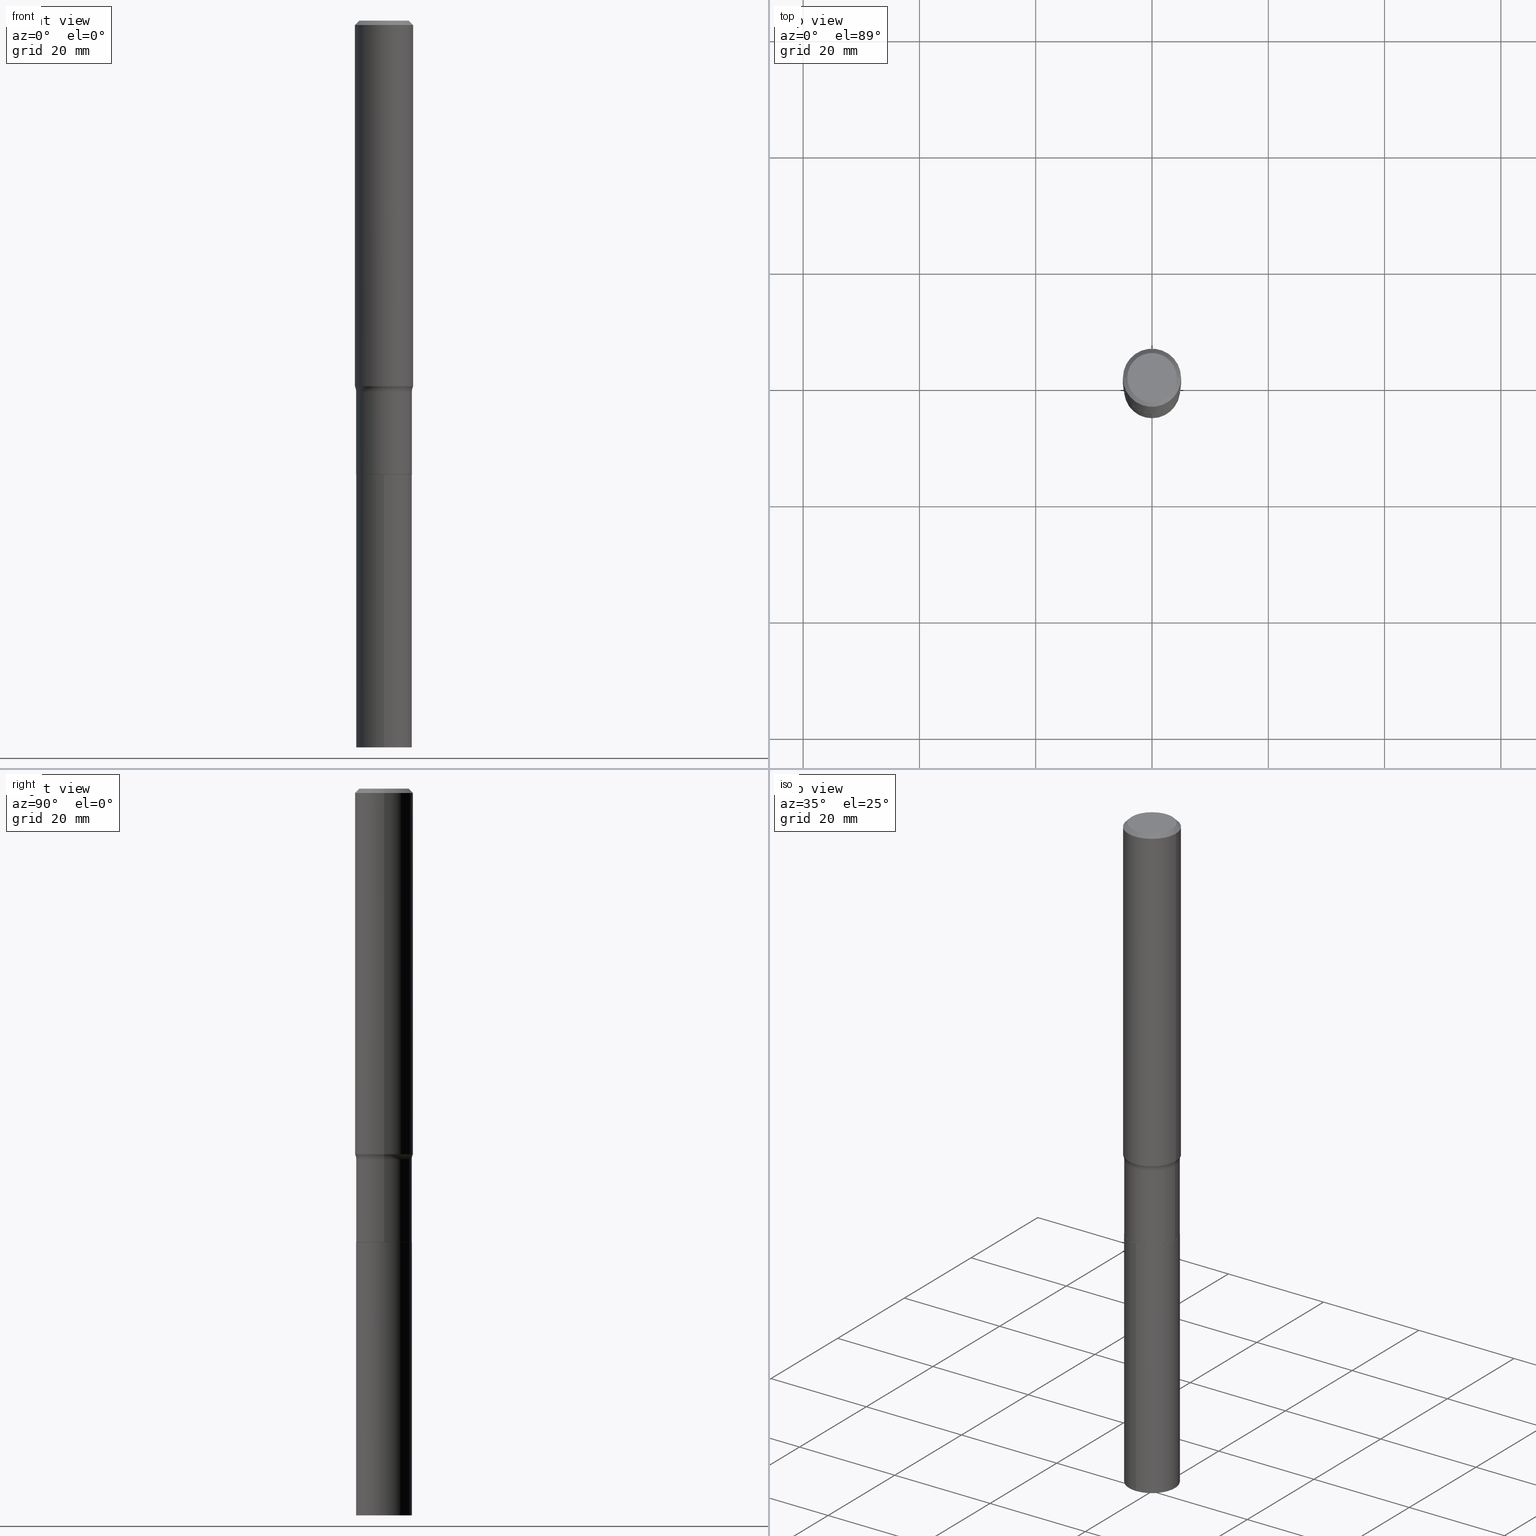
[diagram: canonical four-view strip — front | top / right | iso, engineering-drawing reading convention]
A machine part, canonical four-view strip (front | top / right | iso — engineering-drawing reading convention). The complete STEP part file that produces these views, byte-faithful:
ISO-10303-21;
HEADER;
FILE_DESCRIPTION (( 'STEP AP203' ),
    '1' );
FILE_NAME ('67884.STEP',
    '2024-04-19T16:53:58',
    ( '' ),
    ( '' ),
    'SwSTEP 2.0',
    'SolidWorks 2023',
    '' );
FILE_SCHEMA (( 'CONFIG_CONTROL_DESIGN' ));
ENDSEC;

DATA;
#1 = ORIENTED_EDGE ( 'NONE', *, *, #186, .F. ) ;
#2 = DATE_AND_TIME ( #289, #434 ) ;
#3 = FACE_OUTER_BOUND ( 'NONE', #273, .T. ) ;
#4 = EDGE_CURVE ( 'NONE', #161, #79, #75, .T. ) ;
#5 = PRODUCT ( '67884', '67884', '', ( #278 ) ) ;
#6 = DIRECTION ( 'NONE',  ( -6.982962677686265922E-15, -1.000000000000000000, 2.890844437739961472E-15 ) ) ;
#7 = VERTEX_POINT ( 'NONE', #200 ) ;
#8 = CC_DESIGN_APPROVAL ( #397, ( #363 ) ) ;
#9 = DIRECTION ( 'NONE',  ( -1.000000000000000000, 6.982962677686265922E-15, -4.876176775795935793E-29 ) ) ;
#10 = ADVANCED_FACE ( 'NONE', ( #446 ), #136, .T. ) ;
#11 = CARTESIAN_POINT ( 'NONE',  ( 6.139593984808404623E-29, -8.765713049299602396E-15, -2.510600000000000165 ) ) ;
#12 = DIRECTION ( 'NONE',  ( 1.000000000000000000, -6.982962677686266711E-15, 4.883557194083112901E-29 ) ) ;
#13 = DIRECTION ( 'NONE',  ( -2.445466155500282851E-29, 3.491485134774723364E-15, 1.000000000000000000 ) ) ;
#14 = CC_DESIGN_PERSON_AND_ORGANIZATION_ASSIGNMENT ( #169, #309, ( #333 ) ) ;
#15 = ORIENTED_EDGE ( 'NONE', *, *, #83, .T. ) ;
#16 = CARTESIAN_POINT ( 'NONE',  ( 0.1968500000000000250, -1.453583746094017706E-15, -0.02952750000000018554 ) ) ;
#17 = ORIENTED_EDGE ( 'NONE', *, *, #341, .F. ) ;
#18 = EDGE_LOOP ( 'NONE', ( #23, #235 ) ) ;
#19 = CIRCLE ( 'NONE', #286, 0.1968500000000003303 ) ;
#20 = CIRCLE ( 'NONE', #194, 0.1889999999999999736 ) ;
#21 = CARTESIAN_POINT ( 'NONE',  ( 7.220858017463207734E-31, -1.030947152326916363E-16, -0.02952750000000018554 ) ) ;
#22 = LOCAL_TIME ( 12, 53, 58.00000000000000000, #359 ) ;
#23 = ORIENTED_EDGE ( 'NONE', *, *, #315, .F. ) ;
#24 = LENGTH_MEASURE_WITH_UNIT ( LENGTH_MEASURE( 0.02539999999999999897 ), #349 );
#25 = CARTESIAN_POINT ( 'NONE',  ( 0.1889999999999999736, -1.204142084140223318E-14, -3.070799999999999308 ) ) ;
#26 =( NAMED_UNIT ( * ) SI_UNIT ( $, .STERADIAN. ) SOLID_ANGLE_UNIT ( ) );
#27 = CARTESIAN_POINT ( 'NONE',  ( 0.1968500000000003303, -1.001964447059907086E-14, -2.476040232929025198 ) ) ;
#28 = ORIENTED_EDGE ( 'NONE', *, *, #261, .T. ) ;
#29 = AXIS2_PLACEMENT_3D ( 'NONE', #387, #183, #244 ) ;
#30 = CYLINDRICAL_SURFACE ( 'NONE', #265, 0.1889999999999999458 ) ;
#31 = AXIS2_PLACEMENT_3D ( 'NONE', #263, #328, #123 ) ;
#32 = AXIS2_PLACEMENT_3D ( 'NONE', #246, #250, #313 ) ;
#33 = FACE_OUTER_BOUND ( 'NONE', #41, .T. ) ;
#34 = EDGE_CURVE ( 'NONE', #300, #295, #177, .T. ) ;
#35 = VERTEX_POINT ( 'NONE', #454 ) ;
#36 = DIRECTION ( 'NONE',  ( 1.000000000000000000, -6.982962677686266711E-15, 4.876176775795935793E-29 ) ) ;
#37 = MANIFOLD_SOLID_BREP ( 'Body-Move/Copy2[2]', #403 ) ;
#38 = CARTESIAN_POINT ( 'NONE',  ( 0.1673224999999999851, -1.300749711163072397E-15, 4.096137381456741925E-18 ) ) ;
#39 = PERSON_AND_ORGANIZATION ( #247, #145 ) ;
#40 = CARTESIAN_POINT ( 'NONE',  ( 0.1884999999999999731, -1.203967510073281246E-14, -3.071299999999999475 ) ) ;
#41 = EDGE_LOOP ( 'NONE', ( #46, #105, #410, #411 ) ) ;
#42 = CALENDAR_DATE ( 2024, 19, 4 ) ;
#43 = CARTESIAN_POINT ( 'NONE',  ( -0.1673224999999999851, 1.219954130253505263E-15, 4.096137381439757534E-18 ) ) ;
#44 = VECTOR ( 'NONE', #70, 39.37007874015748143 ) ;
#45 = CIRCLE ( 'NONE', #77, 0.1673224999999999851 ) ;
#46 = ORIENTED_EDGE ( 'NONE', *, *, #461, .T. ) ;
#47 = DIRECTION ( 'NONE',  ( -1.000000000000000000, 7.105427357601005014E-15, 0.000000000000000000 ) ) ;
#48 = DIRECTION ( 'NONE',  ( -2.445468806185136597E-29, 3.491481338843145583E-15, 1.000000000000000000 ) ) ;
#49 = ORIENTED_EDGE ( 'NONE', *, *, #127, .F. ) ;
#50 = DIRECTION ( 'NONE',  ( -1.000000000000000000, 6.982962677686265922E-15, 0.000000000000000000 ) ) ;
#51 = ADVANCED_FACE ( 'NONE', ( #33 ), #215, .T. ) ;
#52 = VECTOR ( 'NONE', #284, 39.37007874015748143 ) ;
#53 = DIRECTION ( 'NONE',  ( -2.445466155500283131E-29, 3.491485134774723364E-15, 1.000000000000000000 ) ) ;
#54 = CC_DESIGN_PERSON_AND_ORGANIZATION_ASSIGNMENT ( #219, #151, ( #443 ) ) ;
#55 = VERTEX_POINT ( 'NONE', #25 ) ;
#56 = AXIS2_PLACEMENT_3D ( 'NONE', #276, #424, #459 ) ;
#57 = CARTESIAN_POINT ( 'NONE',  ( 6.055079152487310970E-29, -8.645048267496527677E-15, -2.476040232929025198 ) ) ;
#58 = DIRECTION ( 'NONE',  ( -2.445468806185136597E-29, 3.491481338843145583E-15, 1.000000000000000000 ) ) ;
#59 = ORIENTED_EDGE ( 'NONE', *, *, #383, .T. ) ;
#60 = LINE ( 'NONE', #342, #167 ) ;
#61 = EDGE_LOOP ( 'NONE', ( #184, #350, #96, #156 ) ) ;
#62 = ADVANCED_FACE ( 'NONE', ( #73 ), #385, .T. ) ;
#63 = AXIS2_PLACEMENT_3D ( 'NONE', #319, #420, #180 ) ;
#64 = CIRCLE ( 'NONE', #117, 0.1889999999999999736 ) ;
#65 = CARTESIAN_POINT ( 'NONE',  ( 7.220858017463207734E-31, -1.030947152326916363E-16, -0.02952750000000018554 ) ) ;
#66 = CC_DESIGN_APPROVAL ( #109, ( #443 ) ) ;
#67 = CARTESIAN_POINT ( 'NONE',  ( 6.139593984808404623E-29, -8.765713049299602396E-15, -2.510600000000000165 ) ) ;
#68 = DIRECTION ( 'NONE',  ( 1.000000000000000000, 0.000000000000000000, 0.000000000000000000 ) ) ;
#69 = COORDINATED_UNIVERSAL_TIME_OFFSET ( 5, 0, .BEHIND. ) ;
#70 = DIRECTION ( 'NONE',  ( -2.445468806185136877E-29, 3.491481338843145188E-15, 1.000000000000000000 ) ) ;
#71 = EDGE_CURVE ( 'NONE', #336, #433, #352, .T. ) ;
#72 = FACE_OUTER_BOUND ( 'NONE', #237, .T. ) ;
#73 = FACE_OUTER_BOUND ( 'NONE', #203, .T. ) ;
#74 = ORIENTED_EDGE ( 'NONE', *, *, #315, .T. ) ;
#75 = CIRCLE ( 'NONE', #366, 0.1968500000000003303 ) ;
#76 = DIRECTION ( 'NONE',  ( -2.445468806185136597E-29, 3.491481338843145583E-15, 1.000000000000000000 ) ) ;
#77 = AXIS2_PLACEMENT_3D ( 'NONE', #334, #48, #297 ) ;
#78 = DIRECTION ( 'NONE',  ( -6.982962677686266711E-15, -1.000000000000000000, 3.491481338843145583E-15 ) ) ;
#79 = VERTEX_POINT ( 'NONE', #416 ) ;
#80 = COORDINATED_UNIVERSAL_TIME_OFFSET ( 5, 0, .BEHIND. ) ;
#81 = DIRECTION ( 'NONE',  ( 6.982962677686265922E-15, 1.000000000000000000, -3.491485134774723364E-15 ) ) ;
#82 = DIMENSIONAL_EXPONENTS ( 1.000000000000000000, 0.000000000000000000, 0.000000000000000000, 0.000000000000000000, 0.000000000000000000, 0.000000000000000000, 0.000000000000000000 ) ;
#83 = EDGE_CURVE ( 'NONE', #7, #55, #108, .T. ) ;
#84 = APPROVAL_ROLE ( '' ) ;
#85 = DIRECTION ( 'NONE',  ( 2.438088387897960049E-29, -3.491481338843145188E-15, -1.000000000000000000 ) ) ;
#86 = AXIS2_PLACEMENT_3D ( 'NONE', #274, #318, #68 ) ;
#87 = LOCAL_TIME ( 12, 53, 58.00000000000000000, #69 ) ;
#88 = PERSON_AND_ORGANIZATION ( #247, #145 ) ;
#89 = CYLINDRICAL_SURFACE ( 'NONE', #394, 0.1889999999999999736 ) ;
#90 = EDGE_CURVE ( 'NONE', #433, #55, #426, .T. ) ;
#91 = DATE_AND_TIME ( #398, #326 ) ;
#92 = CARTESIAN_POINT ( 'NONE',  ( 7.510768344436409201E-29, -1.072338663598895144E-14, -3.071299999999999475 ) ) ;
#93 = CARTESIAN_POINT ( 'NONE',  ( 7.510768344436409201E-29, -1.072338663598895144E-14, -3.071299999999999475 ) ) ;
#94 = CIRCLE ( 'NONE', #468, 0.1884999999999999731 ) ;
#95 = CONICAL_SURFACE ( 'NONE', #31, 0.1968500000000000250, 0.7853981633974456145 ) ;
#96 = ORIENTED_EDGE ( 'NONE', *, *, #34, .T. ) ;
#97 = EDGE_CURVE ( 'NONE', #79, #161, #19, .T. ) ;
#98 = ORIENTED_EDGE ( 'NONE', *, *, #71, .F. ) ;
#99 = AXIS2_PLACEMENT_3D ( 'NONE', #314, #457, #47 ) ;
#100 = EDGE_LOOP ( 'NONE', ( #170, #414 ) ) ;
#101 = CARTESIAN_POINT ( 'NONE',  ( 7.510768344436409201E-29, -1.072338663598895144E-14, -3.071299999999999475 ) ) ;
#102 = EDGE_CURVE ( 'NONE', #336, #7, #94, .T. ) ;
#103 = ORIENTED_EDGE ( 'NONE', *, *, #329, .T. ) ;
#104 = CARTESIAN_POINT ( 'NONE',  ( -0.1889999999999999736, -8.400751201722976017E-15, -3.070799999999999308 ) ) ;
#105 = ORIENTED_EDGE ( 'NONE', *, *, #163, .T. ) ;
#106 = TOROIDAL_SURFACE ( 'NONE', #238, 0.2689999999999999059, 0.07999999999999994615 ) ;
#107 = AXIS2_PLACEMENT_3D ( 'NONE', #374, #272, #12 ) ;
#108 = LINE ( 'NONE', #40, #303 ) ;
#109 = APPROVAL ( #322, 'UNSPECIFIED' ) ;
#110 = VERTEX_POINT ( 'NONE', #152 ) ;
#111 = LINE ( 'NONE', #320, #52 ) ;
#112 = DIRECTION ( 'NONE',  ( -2.445468806185136597E-29, 3.491481338843145583E-15, 1.000000000000000000 ) ) ;
#113 = VERTEX_POINT ( 'NONE', #277 ) ;
#114 = CARTESIAN_POINT ( 'NONE',  ( -0.1968500000000000250, -2.975368116020849133E-15, -0.02952750000000018554 ) ) ;
#115 = DIRECTION ( 'NONE',  ( 1.000000000000000000, -6.982962677686261977E-15, 0.000000000000000000 ) ) ;
#116 = APPLICATION_PROTOCOL_DEFINITION ( 'international standard', 'config_control_design', 1994, #255 ) ;
#117 = AXIS2_PLACEMENT_3D ( 'NONE', #386, #76, #210 ) ;
#118 = CARTESIAN_POINT ( 'NONE',  ( 6.055079152487310970E-29, -8.645048267496527677E-15, -2.476040232929025198 ) ) ;
#119 = DATE_AND_TIME ( #429, #126 ) ;
#120 = CARTESIAN_POINT ( 'NONE',  ( -0.1889999999999999458, 1.342925770586588966E-15, -9.296787320581769859E-30 ) ) ;
#121 = EDGE_CURVE ( 'NONE', #113, #35, #264, .T. ) ;
#122 = ORIENTED_EDGE ( 'NONE', *, *, #206, .T. ) ;
#123 = DIRECTION ( 'NONE',  ( -1.000000000000000000, 6.982962677686265922E-15, 0.000000000000000000 ) ) ;
#124 = CARTESIAN_POINT ( 'NONE',  ( -5.008488096090108951E-47, 7.150793614331948590E-33, 2.048068690724054183E-18 ) ) ;
#125 = CIRCLE ( 'NONE', #372, 0.1889999999999999736 ) ;
#126 = LOCAL_TIME ( 12, 53, 58.00000000000000000, #80 ) ;
#127 = EDGE_CURVE ( 'NONE', #212, #409, #357, .T. ) ;
#128 = ORIENTED_EDGE ( 'NONE', *, *, #461, .F. ) ;
#129 = CARTESIAN_POINT ( 'NONE',  ( 1.342925770586686785E-15, 0.1889999999999828206, -4.921300000000002228 ) ) ;
#130 = CIRCLE ( 'NONE', #380, 0.07999999999999993228 ) ;
#131 = CONICAL_SURFACE ( 'NONE', #427, 0.1968500000000000250, 0.7853981633974456145 ) ;
#132 = CARTESIAN_POINT ( 'NONE',  ( -0.1889999999999999181, -8.400751201722976017E-15, -2.510600000000000165 ) ) ;
#133 = APPROVAL ( #335, 'UNSPECIFIED' ) ;
#134 = ORIENTED_EDGE ( 'NONE', *, *, #34, .F. ) ;
#135 = PERSON_AND_ORGANIZATION ( #247, #145 ) ;
#136 = CYLINDRICAL_SURFACE ( 'NONE', #371, 0.1968500000000001915 ) ;
#137 = CC_DESIGN_SECURITY_CLASSIFICATION ( #363, ( #333 ) ) ;
#138 = ORIENTED_EDGE ( 'NONE', *, *, #163, .F. ) ;
#139 = EDGE_CURVE ( 'NONE', #161, #295, #130, .T. ) ;
#140 = ORIENTED_EDGE ( 'NONE', *, *, #364, .T. ) ;
#141 = EDGE_LOOP ( 'NONE', ( #74, #305, #292, #147 ) ) ;
#142 = CARTESIAN_POINT ( 'NONE',  ( 7.510768344436409201E-29, -1.072338663598895144E-14, -3.071299999999999475 ) ) ;
#143 = DIRECTION ( 'NONE',  ( -0.7071067811865454633, 2.468850131082235761E-15, -0.7071067811865493491 ) ) ;
#144 = VECTOR ( 'NONE', #175, 39.37007874015748143 ) ;
#145 = ORGANIZATION ( 'UNSPECIFIED', 'UNSPECIFIED', '' ) ;
#146 = DIRECTION ( 'NONE',  ( -2.445468806185136597E-29, 3.491481338843145583E-15, 1.000000000000000000 ) ) ;
#147 = ORIENTED_EDGE ( 'NONE', *, *, #423, .F. ) ;
#148 = DIRECTION ( 'NONE',  ( 1.000000000000000000, -6.982962677686265922E-15, 0.000000000000000000 ) ) ;
#149 = CARTESIAN_POINT ( 'NONE',  ( 0.2689999999999999059, -1.064413000959720808E-14, -2.510600000000000165 ) ) ;
#150 = DIRECTION ( 'NONE',  ( -2.445468806185136877E-29, 3.491481338843145188E-15, 1.000000000000000000 ) ) ;
#151 = PERSON_AND_ORGANIZATION_ROLE ( 'creator' ) ;
#152 = CARTESIAN_POINT ( 'NONE',  ( 0.1968500000000000250, -1.477690918335233294E-15, -0.02952750000000018554 ) ) ;
#153 = ORIENTED_EDGE ( 'NONE', *, *, #102, .F. ) ;
#154 = DIRECTION ( 'NONE',  ( -6.982962677686265922E-15, -1.000000000000000000, 5.781688875479922944E-15 ) ) ;
#155 = ADVANCED_FACE ( 'NONE', ( #248 ), #106, .F. ) ;
#156 = ORIENTED_EDGE ( 'NONE', *, *, #139, .F. ) ;
#157 = CARTESIAN_POINT ( 'NONE',  ( 7.220858017463207734E-31, -1.030947152326916363E-16, -0.02952750000000018554 ) ) ;
#158 = EDGE_LOOP ( 'NONE', ( #17, #153 ) ) ;
#159 = DIRECTION ( 'NONE',  ( -2.445468806185136597E-29, 3.491481338843145583E-15, 1.000000000000000000 ) ) ;
#160 = EDGE_CURVE ( 'NONE', #161, #110, #290, .T. ) ;
#161 = VERTEX_POINT ( 'NONE', #27 ) ;
#162 = EDGE_LOOP ( 'NONE', ( #1, #103, #59, #49 ) ) ;
#163 = EDGE_CURVE ( 'NONE', #433, #300, #218, .T. ) ;
#164 = APPROVAL_ROLE ( '' ) ;
#165 = EDGE_LOOP ( 'NONE', ( #138, #196, #330, #134 ) ) ;
#166 = AXIS2_PLACEMENT_3D ( 'NONE', #67, #279, #355 ) ;
#167 = VECTOR ( 'NONE', #13, 39.37007874015748143 ) ;
#168 = LINE ( 'NONE', #16, #197 ) ;
#169 = PERSON_AND_ORGANIZATION ( #247, #145 ) ;
#170 = ORIENTED_EDGE ( 'NONE', *, *, #121, .T. ) ;
#171 = DIRECTION ( 'NONE',  ( -2.445468806185136597E-29, 3.491481338843145583E-15, 1.000000000000000000 ) ) ;
#172 = CARTESIAN_POINT ( 'NONE',  ( 0.000000000000000000, 0.000000000000000000, 0.000000000000000000 ) ) ;
#173 = LINE ( 'NONE', #281, #456 ) ;
#174 = EDGE_CURVE ( 'NONE', #55, #295, #382, .T. ) ;
#175 = DIRECTION ( 'NONE',  ( -2.445468806185136877E-29, 3.491481338843145188E-15, 1.000000000000000000 ) ) ;
#176 = EDGE_LOOP ( 'NONE', ( #358, #229, #353, #28 ) ) ;
#177 = CIRCLE ( 'NONE', #166, 0.1889999999999999181 ) ;
#178 = AXIS2_PLACEMENT_3D ( 'NONE', #124, #85, #9 ) ;
#179 = DIRECTION ( 'NONE',  ( 1.000000000000000000, -6.982962677686269866E-15, 0.000000000000000000 ) ) ;
#180 = DIRECTION ( 'NONE',  ( -6.982962677686265922E-15, -1.000000000000000000, 2.890844437739961472E-15 ) ) ;
#181 = EDGE_CURVE ( 'NONE', #79, #300, #232, .T. ) ;
#182 = DIRECTION ( 'NONE',  ( -2.445466155500283131E-29, 3.491485134774723364E-15, 1.000000000000000000 ) ) ;
#183 = DIRECTION ( 'NONE',  ( -2.445468806185136597E-29, 3.491481338843145583E-15, 1.000000000000000000 ) ) ;
#184 = ORIENTED_EDGE ( 'NONE', *, *, #97, .F. ) ;
#185 = TOROIDAL_SURFACE ( 'NONE', #107, 0.2689999999999999059, 0.07999999999999994615 ) ;
#186 = EDGE_CURVE ( 'NONE', #442, #212, #45, .T. ) ;
#187 = APPROVAL_STATUS ( 'not_yet_approved' ) ;
#188 = FACE_OUTER_BOUND ( 'NONE', #100, .T. ) ;
#189 = MANIFOLD_SOLID_BREP ( 'Body-Move/Copy2[1]', #343 ) ;
#190 = COORDINATED_UNIVERSAL_TIME_OFFSET ( 5, 0, .BEHIND. ) ;
#191 = FACE_OUTER_BOUND ( 'NONE', #406, .T. ) ;
#192 = VERTEX_POINT ( 'NONE', #438 ) ;
#193 = CYLINDRICAL_SURFACE ( 'NONE', #227, 0.1889999999999999736 ) ;
#194 = AXIS2_PLACEMENT_3D ( 'NONE', #267, #198, #266 ) ;
#195 = ADVANCED_FACE ( 'NONE', ( #191 ), #393, .F. ) ;
#196 = ORIENTED_EDGE ( 'NONE', *, *, #90, .T. ) ;
#197 = VECTOR ( 'NONE', #301, 39.37007874015748854 ) ;
#198 = DIRECTION ( 'NONE',  ( -2.445466155500283131E-29, 3.491485134774723364E-15, 1.000000000000000000 ) ) ;
#199 = CC_DESIGN_DATE_AND_TIME_ASSIGNMENT ( #2, #401, ( #363 ) ) ;
#200 = CARTESIAN_POINT ( 'NONE',  ( 0.1884999999999999731, -1.203967510073281246E-14, -3.071299999999999475 ) ) ;
#201 = DIRECTION ( 'NONE',  ( 1.000000000000000000, -6.982962677686269866E-15, 0.000000000000000000 ) ) ;
#202 = VERTEX_POINT ( 'NONE', #129 ) ;
#203 = EDGE_LOOP ( 'NONE', ( #275, #140, #400, #310 ) ) ;
#204 = AXIS2_PLACEMENT_3D ( 'NONE', #101, #441, #377 ) ;
#205 = DIRECTION ( 'NONE',  ( -6.982962677686265922E-15, -1.000000000000000000, 2.890844437739961472E-15 ) ) ;
#206 = EDGE_CURVE ( 'NONE', #202, #192, #125, .T. ) ;
#207 = PERSON_AND_ORGANIZATION_ROLE ( 'design_owner' ) ;
#208 = DIRECTION ( 'NONE',  ( -2.445468806185136597E-29, 3.491481338843145583E-15, 1.000000000000000000 ) ) ;
#209 = ORIENTED_EDGE ( 'NONE', *, *, #368, .F. ) ;
#210 = DIRECTION ( 'NONE',  ( 1.000000000000000000, -6.982962677686266711E-15, 0.000000000000000000 ) ) ;
#211 = DIRECTION ( 'NONE',  ( 1.000000000000000000, -6.982962677686266711E-15, 4.876176775795935793E-29 ) ) ;
#212 = VERTEX_POINT ( 'NONE', #43 ) ;
#213 =( NAMED_UNIT ( * ) PLANE_ANGLE_UNIT ( ) SI_UNIT ( $, .RADIAN. ) );
#214 = APPROVAL_DATE_TIME ( #419, #133 ) ;
#215 = CYLINDRICAL_SURFACE ( 'NONE', #231, 0.1889999999999999458 ) ;
#216 = ADVANCED_FACE ( 'NONE', ( #258 ), #316, .T. ) ;
#217 = FACE_OUTER_BOUND ( 'NONE', #18, .T. ) ;
#218 = LINE ( 'NONE', #120, #361 ) ;
#219 = PERSON_AND_ORGANIZATION ( #247, #145 ) ;
#220 = CARTESIAN_POINT ( 'NONE',  ( 1.203488073211193522E-28, -1.718263413532219501E-14, -4.921300000000000452 ) ) ;
#221 = CIRCLE ( 'NONE', #287, 0.1968500000000000250 ) ;
#222 = APPROVAL_PERSON_ORGANIZATION ( #465, #109, #252 ) ;
#223 = DIRECTION ( 'NONE',  ( -2.445468806185136597E-29, 3.491481338843145583E-15, 1.000000000000000000 ) ) ;
#224 = CARTESIAN_POINT ( 'NONE',  ( 7.510768344436409201E-29, -1.072338663598895144E-14, -3.071299999999999475 ) ) ;
#225 = APPLICATION_CONTEXT ( 'configuration controlled 3d designs of mechanical parts and assemblies' ) ;
#226 = DIRECTION ( 'NONE',  ( 1.000000000000000000, -6.982962677686269866E-15, 0.000000000000000000 ) ) ;
#227 = AXIS2_PLACEMENT_3D ( 'NONE', #224, #259, #6 ) ;
#228 = ADVANCED_FACE ( 'NONE', ( #391 ), #95, .T. ) ;
#229 = ORIENTED_EDGE ( 'NONE', *, *, #4, .F. ) ;
#230 = ADVANCED_FACE ( 'NONE', ( #188 ), #360, .F. ) ;
#231 = AXIS2_PLACEMENT_3D ( 'NONE', #422, #347, #36 ) ;
#232 = CIRCLE ( 'NONE', #99, 0.07999999999999993228 ) ;
#233 = ORIENTED_EDGE ( 'NONE', *, *, #127, .T. ) ;
#234 = AXIS2_PLACEMENT_3D ( 'NONE', #396, #223, #226 ) ;
#235 = ORIENTED_EDGE ( 'NONE', *, *, #206, .F. ) ;
#236 = ORIENTED_EDGE ( 'NONE', *, *, #423, .T. ) ;
#237 = EDGE_LOOP ( 'NONE', ( #98, #340, #15, #317 ) ) ;
#238 = AXIS2_PLACEMENT_3D ( 'NONE', #467, #146, #464 ) ;
#239 = ADVANCED_FACE ( 'NONE', ( #3 ), #193, .T. ) ;
#240 = CONICAL_SURFACE ( 'NONE', #404, 0.1884999999999999731, 0.7853981633972775267 ) ;
#241 = DIRECTION ( 'NONE',  ( -2.445468806185136597E-29, 3.491481338843145583E-15, 1.000000000000000000 ) ) ;
#242 = PRODUCT_RELATED_PRODUCT_CATEGORY ( 'detail', '', ( #5 ) ) ;
#243 = EDGE_LOOP ( 'NONE', ( #283, #418, #233, #428 ) ) ;
#244 = DIRECTION ( 'NONE',  ( 1.000000000000000000, -6.982962677686266711E-15, 0.000000000000000000 ) ) ;
#245 = ADVANCED_FACE ( 'NONE', ( #402 ), #89, .T. ) ;
#246 = CARTESIAN_POINT ( 'NONE',  ( -1.001697619218021790E-46, 1.430158722866389718E-32, 4.096137381448108366E-18 ) ) ;
#247 = PERSON ( 'UNSPECIFIED', 'UNSPECIFIED', 'UNSPECIFIED', ('UNSPECIFIED'), ('UNSPECIFIED'), ('UNSPECIFIED') ) ;
#248 = FACE_OUTER_BOUND ( 'NONE', #61, .T. ) ;
#249 = CIRCLE ( 'NONE', #32, 0.1673224999999999851 ) ;
#250 = DIRECTION ( 'NONE',  ( -2.445468806185136597E-29, 3.491481338843145583E-15, 1.000000000000000000 ) ) ;
#251 = DIRECTION ( 'NONE',  ( 1.000000000000000000, -6.982962677686266711E-15, 4.876176775795935793E-29 ) ) ;
#252 = APPROVAL_ROLE ( '' ) ;
#253 = DIRECTION ( 'NONE',  ( -6.982962677686265922E-15, -1.000000000000000000, 2.890844437739961472E-15 ) ) ;
#254 = ADVANCED_FACE ( 'NONE', ( #399 ), #131, .T. ) ;
#255 = APPLICATION_CONTEXT ( 'configuration controlled 3d designs of mechanical parts and assemblies' ) ;
#256 = CIRCLE ( 'NONE', #447, 0.1889999999999999736 ) ;
#257 = SECURITY_CLASSIFICATION_LEVEL ( 'unclassified' ) ;
#258 = FACE_OUTER_BOUND ( 'NONE', #450, .T. ) ;
#259 = DIRECTION ( 'NONE',  ( -2.445466155500283131E-29, 3.491485134774723364E-15, 1.000000000000000000 ) ) ;
#260 = ORIENTED_EDGE ( 'NONE', *, *, #186, .T. ) ;
#261 = EDGE_CURVE ( 'NONE', #295, #300, #299, .T. ) ;
#262 = COORDINATED_UNIVERSAL_TIME_OFFSET ( 5, 0, .BEHIND. ) ;
#263 = CARTESIAN_POINT ( 'NONE',  ( 7.220858017463207734E-31, -1.030947152326916363E-16, -0.02952750000000018554 ) ) ;
#264 = CIRCLE ( 'NONE', #63, 0.1889999999999999736 ) ;
#265 = AXIS2_PLACEMENT_3D ( 'NONE', #346, #384, #311 ) ;
#266 = DIRECTION ( 'NONE',  ( -6.982962677686265922E-15, -1.000000000000000000, 5.781688875479922944E-15 ) ) ;
#267 = CARTESIAN_POINT ( 'NONE',  ( 1.203488073211193522E-28, -1.718263413532219501E-14, -4.921300000000000452 ) ) ;
#268 = DIRECTION ( 'NONE',  ( 1.000000000000000000, -6.982962677686261977E-15, 0.000000000000000000 ) ) ;
#269 = PRODUCT_DEFINITION_SHAPE ( 'NONE', 'NONE',  #443 ) ;
#270 = DIRECTION ( 'NONE',  ( 1.000000000000000000, -6.982962677686265922E-15, 0.000000000000000000 ) ) ;
#271 = CARTESIAN_POINT ( 'NONE',  ( 0.000000000000000000, 0.000000000000000000, 0.000000000000000000 ) ) ;
#272 = DIRECTION ( 'NONE',  ( -2.445468806185136597E-29, 3.491481338843145583E-15, 1.000000000000000000 ) ) ;
#273 = EDGE_LOOP ( 'NONE', ( #378, #122, #236, #209 ) ) ;
#274 = CARTESIAN_POINT ( 'NONE',  ( 0.000000000000000000, 0.000000000000000000, 0.000000000000000000 ) ) ;
#275 = ORIENTED_EDGE ( 'NONE', *, *, #4, .T. ) ;
#276 = CARTESIAN_POINT ( 'NONE',  ( -7.834035170096505340E-29, -4.563605257574812416E-14, -4.921300000000000452 ) ) ;
#277 = CARTESIAN_POINT ( 'NONE',  ( -1.319779946082628891E-15, -0.1890000000000107150, -3.071299999999999031 ) ) ;
#278 = MECHANICAL_CONTEXT ( 'NONE', #255, 'mechanical' ) ;
#279 = DIRECTION ( 'NONE',  ( -2.445468806185136597E-29, 3.491481338843145583E-15, 1.000000000000000000 ) ) ;
#280 = CC_DESIGN_PERSON_AND_ORGANIZATION_ASSIGNMENT ( #356, #207, ( #5 ) ) ;
#281 = CARTESIAN_POINT ( 'NONE',  ( -0.1968500000000001915, 1.398703375343758577E-15, -9.682923725166790684E-30 ) ) ;
#282 = DIRECTION ( 'NONE',  ( 0.7071067811864267805, -2.468850131080992517E-15, 0.7071067811866682540 ) ) ;
#283 = ORIENTED_EDGE ( 'NONE', *, *, #329, .F. ) ;
#284 = DIRECTION ( 'NONE',  ( -2.445466155500282851E-29, 3.491485134774723364E-15, 1.000000000000000000 ) ) ;
#285 = CARTESIAN_POINT ( 'NONE',  ( 0.1889999999999999458, -1.319779946082704030E-15, 9.215974106254316519E-30 ) ) ;
#286 = AXIS2_PLACEMENT_3D ( 'NONE', #118, #241, #115 ) ;
#287 = AXIS2_PLACEMENT_3D ( 'NONE', #65, #412, #148 ) ;
#288 = APPLICATION_PROTOCOL_DEFINITION ( 'international standard', 'config_control_design', 1994, #225 ) ;
#289 = CALENDAR_DATE ( 2024, 19, 4 ) ;
#290 = LINE ( 'NONE', #430, #44 ) ;
#291 = ADVANCED_FACE ( 'NONE', ( #439 ), #185, .F. ) ;
#292 = ORIENTED_EDGE ( 'NONE', *, *, #121, .F. ) ;
#293 = AXIS2_PLACEMENT_3D ( 'NONE', #172, #112, #251 ) ;
#294 = CC_DESIGN_APPROVAL ( #133, ( #333 ) ) ;
#295 = VERTEX_POINT ( 'NONE', #369 ) ;
#296 = ADVANCED_FACE ( 'NONE', ( #308 ), #448, .F. ) ;
#297 = DIRECTION ( 'NONE',  ( 1.000000000000000000, -6.982962677686267499E-15, 4.876294436782262290E-29 ) ) ;
#298 = DIRECTION ( 'NONE',  ( 1.000000000000000000, -6.982962677686269077E-15, 0.000000000000000000 ) ) ;
#299 = CIRCLE ( 'NONE', #381, 0.1889999999999999181 ) ;
#300 = VERTEX_POINT ( 'NONE', #132 ) ;
#301 = DIRECTION ( 'NONE',  ( 0.7071067811865454633, -7.319954787623246579E-15, -0.7071067811865493491 ) ) ;
#302 = ORIENTED_EDGE ( 'NONE', *, *, #83, .F. ) ;
#303 = VECTOR ( 'NONE', #282, 39.37007874015748143 ) ;
#304 = CIRCLE ( 'NONE', #415, 0.1884999999999999731 ) ;
#305 = ORIENTED_EDGE ( 'NONE', *, *, #307, .T. ) ;
#306 = APPROVAL_PERSON_ORGANIZATION ( #39, #397, #84 ) ;
#307 = EDGE_CURVE ( 'NONE', #202, #35, #60, .T. ) ;
#308 = FACE_OUTER_BOUND ( 'NONE', #158, .T. ) ;
#309 = PERSON_AND_ORGANIZATION_ROLE ( 'design_supplier' ) ;
#310 = ORIENTED_EDGE ( 'NONE', *, *, #160, .F. ) ;
#311 = DIRECTION ( 'NONE',  ( 1.000000000000000000, -6.982962677686266711E-15, 4.876176775795935793E-29 ) ) ;
#312 = DIRECTION ( 'NONE',  ( -0.7071067811864267805, 7.493145998869918709E-15, 0.7071067811866682540 ) ) ;
#313 = DIRECTION ( 'NONE',  ( 1.000000000000000000, -6.982962677686267499E-15, 4.876294436782262290E-29 ) ) ;
#314 = CARTESIAN_POINT ( 'NONE',  ( -0.2689999999999999059, -6.854353090104933565E-15, -2.510600000000000165 ) ) ;
#315 = EDGE_CURVE ( 'NONE', #192, #202, #20, .T. ) ;
#316 = CONICAL_SURFACE ( 'NONE', #234, 0.1884999999999999731, 0.7853981633972775267 ) ;
#317 = ORIENTED_EDGE ( 'NONE', *, *, #90, .F. ) ;
#318 = DIRECTION ( 'NONE',  ( 0.000000000000000000, 0.000000000000000000, 1.000000000000000000 ) ) ;
#319 = CARTESIAN_POINT ( 'NONE',  ( 7.510768344436409201E-29, -1.072338663598895144E-14, -3.071299999999999475 ) ) ;
#320 = CARTESIAN_POINT ( 'NONE',  ( -1.319779946082628891E-15, -0.1890000000000107150, -3.071299999999999031 ) ) ;
#321 = DIRECTION ( 'NONE',  ( 1.000000000000000000, -6.982962677686265133E-15, 0.000000000000000000 ) ) ;
#322 = APPROVAL_STATUS ( 'not_yet_approved' ) ;
#323 = CARTESIAN_POINT ( 'NONE',  ( 7.510768344436409201E-29, -1.072338663598895144E-14, -3.071299999999999475 ) ) ;
#324 = VECTOR ( 'NONE', #143, 39.37007874015748854 ) ;
#325 =( GEOMETRIC_REPRESENTATION_CONTEXT ( 3 ) GLOBAL_UNCERTAINTY_ASSIGNED_CONTEXT ( ( #337 ) ) GLOBAL_UNIT_ASSIGNED_CONTEXT ( ( #354, #213, #26 ) ) REPRESENTATION_CONTEXT ( 'NONE', 'WORKASPACE' ) );
#326 = LOCAL_TIME ( 12, 53, 58.00000000000000000, #190 ) ;
#327 = EDGE_CURVE ( 'NONE', #409, #110, #362, .T. ) ;
#328 = DIRECTION ( 'NONE',  ( 2.445468806185136597E-29, -3.491481338843145583E-15, -1.000000000000000000 ) ) ;
#329 = EDGE_CURVE ( 'NONE', #442, #110, #168, .T. ) ;
#330 = ORIENTED_EDGE ( 'NONE', *, *, #174, .T. ) ;
#331 = VECTOR ( 'NONE', #312, 39.37007874015748143 ) ;
#332 = AXIS2_PLACEMENT_3D ( 'NONE', #92, #435, #81 ) ;
#333 = PRODUCT_DEFINITION_FORMATION_WITH_SPECIFIED_SOURCE ( 'ANY', '', #5, .NOT_KNOWN. ) ;
#334 = CARTESIAN_POINT ( 'NONE',  ( -1.001697619218021790E-46, 1.430158722866389718E-32, 4.096137381448108366E-18 ) ) ;
#335 = APPROVAL_STATUS ( 'not_yet_approved' ) ;
#336 = VERTEX_POINT ( 'NONE', #444 ) ;
#337 = UNCERTAINTY_MEASURE_WITH_UNIT (LENGTH_MEASURE( 1.000000000000000082E-05 ), #354, 'distance_accuracy_value', 'NONE');
#338 = DIRECTION ( 'NONE',  ( -2.445468806185136597E-29, 3.491481338843145583E-15, 1.000000000000000000 ) ) ;
#339 = ORIENTED_EDGE ( 'NONE', *, *, #71, .T. ) ;
#340 = ORIENTED_EDGE ( 'NONE', *, *, #102, .T. ) ;
#341 = EDGE_CURVE ( 'NONE', #7, #336, #304, .T. ) ;
#342 = CARTESIAN_POINT ( 'NONE',  ( 1.342925770586664303E-15, 0.1889999999999892599, -3.071299999999999919 ) ) ;
#343 = CLOSED_SHELL ( 'NONE', ( #245, #375, #239, #230 ) ) ;
#344 = AXIS2_PLACEMENT_3D ( 'NONE', #21, #338, #270 ) ;
#345 = ORIENTED_EDGE ( 'NONE', *, *, #160, .T. ) ;
#346 = CARTESIAN_POINT ( 'NONE',  ( 0.000000000000000000, 0.000000000000000000, 0.000000000000000000 ) ) ;
#347 = DIRECTION ( 'NONE',  ( -2.445468806185136597E-29, 3.491481338843145583E-15, 1.000000000000000000 ) ) ;
#348 = CC_DESIGN_PERSON_AND_ORGANIZATION_ASSIGNMENT ( #451, #388, ( #333 ) ) ;
#349 =( LENGTH_UNIT ( ) NAMED_UNIT ( * ) SI_UNIT ( $, .METRE. ) );
#350 = ORIENTED_EDGE ( 'NONE', *, *, #181, .T. ) ;
#351 = CARTESIAN_POINT ( 'NONE',  ( 7.510768344436409201E-29, -1.072338663598895144E-14, -3.071299999999999475 ) ) ;
#352 = LINE ( 'NONE', #425, #331 ) ;
#353 = ORIENTED_EDGE ( 'NONE', *, *, #139, .T. ) ;
#354 =( CONVERSION_BASED_UNIT ( 'INCH', #24 ) LENGTH_UNIT ( ) NAMED_UNIT ( #82 ) );
#355 = DIRECTION ( 'NONE',  ( 1.000000000000000000, -6.982962677686269077E-15, 0.000000000000000000 ) ) ;
#356 = PERSON_AND_ORGANIZATION ( #247, #145 ) ;
#357 = LINE ( 'NONE', #460, #324 ) ;
#358 = ORIENTED_EDGE ( 'NONE', *, *, #181, .F. ) ;
#359 = COORDINATED_UNIVERSAL_TIME_OFFSET ( 5, 0, .BEHIND. ) ;
#360 = PLANE ( 'NONE',  #332 ) ;
#361 = VECTOR ( 'NONE', #150, 39.37007874015748143 ) ;
#362 = CIRCLE ( 'NONE', #344, 0.1968500000000000250 ) ;
#363 = SECURITY_CLASSIFICATION ( '', '', #257 ) ;
#364 = EDGE_CURVE ( 'NONE', #79, #409, #173, .T. ) ;
#365 = DIRECTION ( 'NONE',  ( 2.445468806185136597E-29, -3.491481338843145583E-15, -1.000000000000000000 ) ) ;
#366 = AXIS2_PLACEMENT_3D ( 'NONE', #57, #373, #268 ) ;
#367 = DIRECTION ( 'NONE',  ( -2.445466155500283131E-29, 3.491485134774723364E-15, 1.000000000000000000 ) ) ;
#368 = EDGE_CURVE ( 'NONE', #35, #113, #256, .T. ) ;
#369 = CARTESIAN_POINT ( 'NONE',  ( 0.1889999999999999181, -1.008549299538230643E-14, -2.510600000000000165 ) ) ;
#370 = ORIENTED_EDGE ( 'NONE', *, *, #327, .F. ) ;
#371 = AXIS2_PLACEMENT_3D ( 'NONE', #271, #208, #211 ) ;
#372 = AXIS2_PLACEMENT_3D ( 'NONE', #220, #367, #154 ) ;
#373 = DIRECTION ( 'NONE',  ( -2.445468806185136597E-29, 3.491481338843145583E-15, 1.000000000000000000 ) ) ;
#374 = CARTESIAN_POINT ( 'NONE',  ( 6.139593984808404623E-29, -8.765713049299602396E-15, -2.510600000000000165 ) ) ;
#375 = ADVANCED_FACE ( 'NONE', ( #217 ), #455, .F. ) ;
#376 = ORIENTED_EDGE ( 'NONE', *, *, #364, .F. ) ;
#377 = DIRECTION ( 'NONE',  ( 1.000000000000000000, -6.982962677686265922E-15, 4.876176775795935793E-29 ) ) ;
#378 = ORIENTED_EDGE ( 'NONE', *, *, #307, .F. ) ;
#379 = FACE_OUTER_BOUND ( 'NONE', #165, .T. ) ;
#380 = AXIS2_PLACEMENT_3D ( 'NONE', #149, #78, #321 ) ;
#381 = AXIS2_PLACEMENT_3D ( 'NONE', #11, #159, #298 ) ;
#382 = LINE ( 'NONE', #285, #144 ) ;
#383 = EDGE_CURVE ( 'NONE', #110, #409, #221, .T. ) ;
#384 = DIRECTION ( 'NONE',  ( -2.445468806185136597E-29, 3.491481338843145583E-15, 1.000000000000000000 ) ) ;
#385 = CYLINDRICAL_SURFACE ( 'NONE', #293, 0.1968500000000001915 ) ;
#386 = CARTESIAN_POINT ( 'NONE',  ( 7.509545610033316400E-29, -1.072164089531952915E-14, -3.070799999999999308 ) ) ;
#387 = CARTESIAN_POINT ( 'NONE',  ( 7.509545610033316400E-29, -1.072164089531952915E-14, -3.070799999999999308 ) ) ;
#388 = PERSON_AND_ORGANIZATION_ROLE ( 'creator' ) ;
#389 = DIRECTION ( 'NONE',  ( -2.445468806185136597E-29, 3.491481338843145583E-15, 1.000000000000000000 ) ) ;
#390 = APPROVAL_DATE_TIME ( #119, #109 ) ;
#391 = FACE_OUTER_BOUND ( 'NONE', #162, .T. ) ;
#392 = PERSON_AND_ORGANIZATION_ROLE ( 'classification_officer' ) ;
#393 = PLANE ( 'NONE',  #178 ) ;
#394 = AXIS2_PLACEMENT_3D ( 'NONE', #93, #53, #253 ) ;
#395 = CC_DESIGN_PERSON_AND_ORGANIZATION_ASSIGNMENT ( #88, #392, ( #363 ) ) ;
#396 = CARTESIAN_POINT ( 'NONE',  ( 7.510768344436409201E-29, -1.072338663598895144E-14, -3.071299999999999475 ) ) ;
#397 = APPROVAL ( #187, 'UNSPECIFIED' ) ;
#398 = CALENDAR_DATE ( 2024, 19, 4 ) ;
#399 = FACE_OUTER_BOUND ( 'NONE', #243, .T. ) ;
#400 = ORIENTED_EDGE ( 'NONE', *, *, #383, .F. ) ;
#401 = DATE_TIME_ROLE ( 'classification_date' ) ;
#402 = FACE_OUTER_BOUND ( 'NONE', #141, .T. ) ;
#403 = CLOSED_SHELL ( 'NONE', ( #216, #228, #62, #155, #51, #453, #291, #10, #254, #195, #296, #407 ) ) ;
#404 = AXIS2_PLACEMENT_3D ( 'NONE', #351, #171, #421 ) ;
#405 = DATE_TIME_ROLE ( 'creation_date' ) ;
#406 = EDGE_LOOP ( 'NONE', ( #458, #260 ) ) ;
#407 = ADVANCED_FACE ( 'NONE', ( #72 ), #240, .T. ) ;
#408 = CARTESIAN_POINT ( 'NONE',  ( 7.510768344436409201E-29, -1.072338663598895144E-14, -3.071299999999999475 ) ) ;
#409 = VERTEX_POINT ( 'NONE', #114 ) ;
#410 = ORIENTED_EDGE ( 'NONE', *, *, #261, .F. ) ;
#411 = ORIENTED_EDGE ( 'NONE', *, *, #174, .F. ) ;
#412 = DIRECTION ( 'NONE',  ( -2.445468806185136597E-29, 3.491481338843145583E-15, 1.000000000000000000 ) ) ;
#413 = CALENDAR_DATE ( 2024, 19, 4 ) ;
#414 = ORIENTED_EDGE ( 'NONE', *, *, #368, .T. ) ;
#415 = AXIS2_PLACEMENT_3D ( 'NONE', #408, #58, #201 ) ;
#416 = CARTESIAN_POINT ( 'NONE',  ( -0.1968500000000003303, -7.246344892152769101E-15, -2.476040232929025198 ) ) ;
#417 = EDGE_CURVE ( 'NONE', #212, #442, #249, .T. ) ;
#418 = ORIENTED_EDGE ( 'NONE', *, *, #417, .F. ) ;
#419 = DATE_AND_TIME ( #413, #87 ) ;
#420 = DIRECTION ( 'NONE',  ( -2.445466155500283131E-29, 3.491485134774723364E-15, 1.000000000000000000 ) ) ;
#421 = DIRECTION ( 'NONE',  ( 1.000000000000000000, -6.982962677686269866E-15, 0.000000000000000000 ) ) ;
#422 = CARTESIAN_POINT ( 'NONE',  ( 0.000000000000000000, 0.000000000000000000, 0.000000000000000000 ) ) ;
#423 = EDGE_CURVE ( 'NONE', #192, #113, #111, .T. ) ;
#424 = DIRECTION ( 'NONE',  ( -2.445466155500282851E-29, 3.491485134774723364E-15, 1.000000000000000000 ) ) ;
#425 = CARTESIAN_POINT ( 'NONE',  ( -0.1884999999999999731, -9.384013579081163372E-15, -3.071299999999999475 ) ) ;
#426 = CIRCLE ( 'NONE', #29, 0.1889999999999999736 ) ;
#427 = AXIS2_PLACEMENT_3D ( 'NONE', #157, #365, #50 ) ;
#428 = ORIENTED_EDGE ( 'NONE', *, *, #327, .T. ) ;
#429 = CALENDAR_DATE ( 2024, 19, 4 ) ;
#430 = CARTESIAN_POINT ( 'NONE',  ( 0.1968500000000001915, -1.374596203102542989E-15, 9.598753983154309266E-30 ) ) ;
#431 = CC_DESIGN_DATE_AND_TIME_ASSIGNMENT ( #445, #405, ( #443 ) ) ;
#432 = APPROVAL_DATE_TIME ( #91, #397 ) ;
#433 = VERTEX_POINT ( 'NONE', #104 ) ;
#434 = LOCAL_TIME ( 12, 53, 58.00000000000000000, #262 ) ;
#435 = DIRECTION ( 'NONE',  ( 2.445466155500282851E-29, -3.491485134774723364E-15, -1.000000000000000000 ) ) ;
#436 = ADVANCED_BREP_SHAPE_REPRESENTATION ( '67884', ( #189, #37, #86 ), #325 ) ;
#437 = ORIENTED_EDGE ( 'NONE', *, *, #341, .T. ) ;
#438 = CARTESIAN_POINT ( 'NONE',  ( -1.319779946082583728E-15, -0.1890000000000171543, -4.921299999999999564 ) ) ;
#439 = FACE_OUTER_BOUND ( 'NONE', #176, .T. ) ;
#440 = DESIGN_CONTEXT ( 'detailed design', #225, 'design' ) ;
#441 = DIRECTION ( 'NONE',  ( -2.438088387897960049E-29, 3.491481338843145188E-15, 1.000000000000000000 ) ) ;
#442 = VERTEX_POINT ( 'NONE', #38 ) ;
#443 = PRODUCT_DEFINITION ( 'UNKNOWN', '', #333, #440 ) ;
#444 = CARTESIAN_POINT ( 'NONE',  ( -0.1884999999999999731, -9.381364351907051382E-15, -3.071299999999999475 ) ) ;
#445 = DATE_AND_TIME ( #42, #22 ) ;
#446 = FACE_OUTER_BOUND ( 'NONE', #462, .T. ) ;
#447 = AXIS2_PLACEMENT_3D ( 'NONE', #142, #182, #205 ) ;
#448 = PLANE ( 'NONE',  #204 ) ;
#449 = APPROVAL_PERSON_ORGANIZATION ( #135, #133, #164 ) ;
#450 = EDGE_LOOP ( 'NONE', ( #437, #339, #128, #302 ) ) ;
#451 = PERSON_AND_ORGANIZATION ( #247, #145 ) ;
#452 = ORIENTED_EDGE ( 'NONE', *, *, #97, .T. ) ;
#453 = ADVANCED_FACE ( 'NONE', ( #379 ), #30, .T. ) ;
#454 = CARTESIAN_POINT ( 'NONE',  ( 1.342925770586709859E-15, 0.1889999999999892599, -3.071299999999999919 ) ) ;
#455 = PLANE ( 'NONE',  #56 ) ;
#456 = VECTOR ( 'NONE', #463, 39.37007874015748143 ) ;
#457 = DIRECTION ( 'NONE',  ( 7.105427357601001859E-15, 1.000000000000000000, -3.491481338843145583E-15 ) ) ;
#458 = ORIENTED_EDGE ( 'NONE', *, *, #417, .T. ) ;
#459 = DIRECTION ( 'NONE',  ( -6.982962677686265922E-15, -1.000000000000000000, 3.491485134774723364E-15 ) ) ;
#460 = CARTESIAN_POINT ( 'NONE',  ( -0.1968500000000000250, 1.271501487869850120E-15, -0.02952750000000018554 ) ) ;
#461 = EDGE_CURVE ( 'NONE', #55, #433, #64, .T. ) ;
#462 = EDGE_LOOP ( 'NONE', ( #376, #452, #345, #370 ) ) ;
#463 = DIRECTION ( 'NONE',  ( -2.445468806185136877E-29, 3.491481338843145188E-15, 1.000000000000000000 ) ) ;
#464 = DIRECTION ( 'NONE',  ( 1.000000000000000000, -6.982962677686266711E-15, 4.883557194083112901E-29 ) ) ;
#465 = PERSON_AND_ORGANIZATION ( #247, #145 ) ;
#466 = SHAPE_DEFINITION_REPRESENTATION ( #269, #436 ) ;
#467 = CARTESIAN_POINT ( 'NONE',  ( 6.139593984808404623E-29, -8.765713049299602396E-15, -2.510600000000000165 ) ) ;
#468 = AXIS2_PLACEMENT_3D ( 'NONE', #323, #389, #179 ) ;
ENDSEC;
END-ISO-10303-21;
